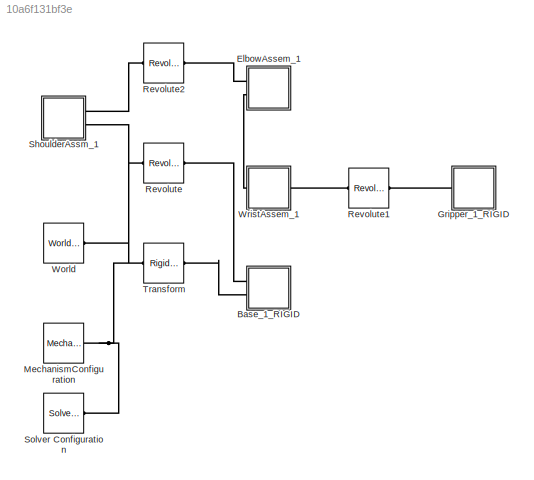
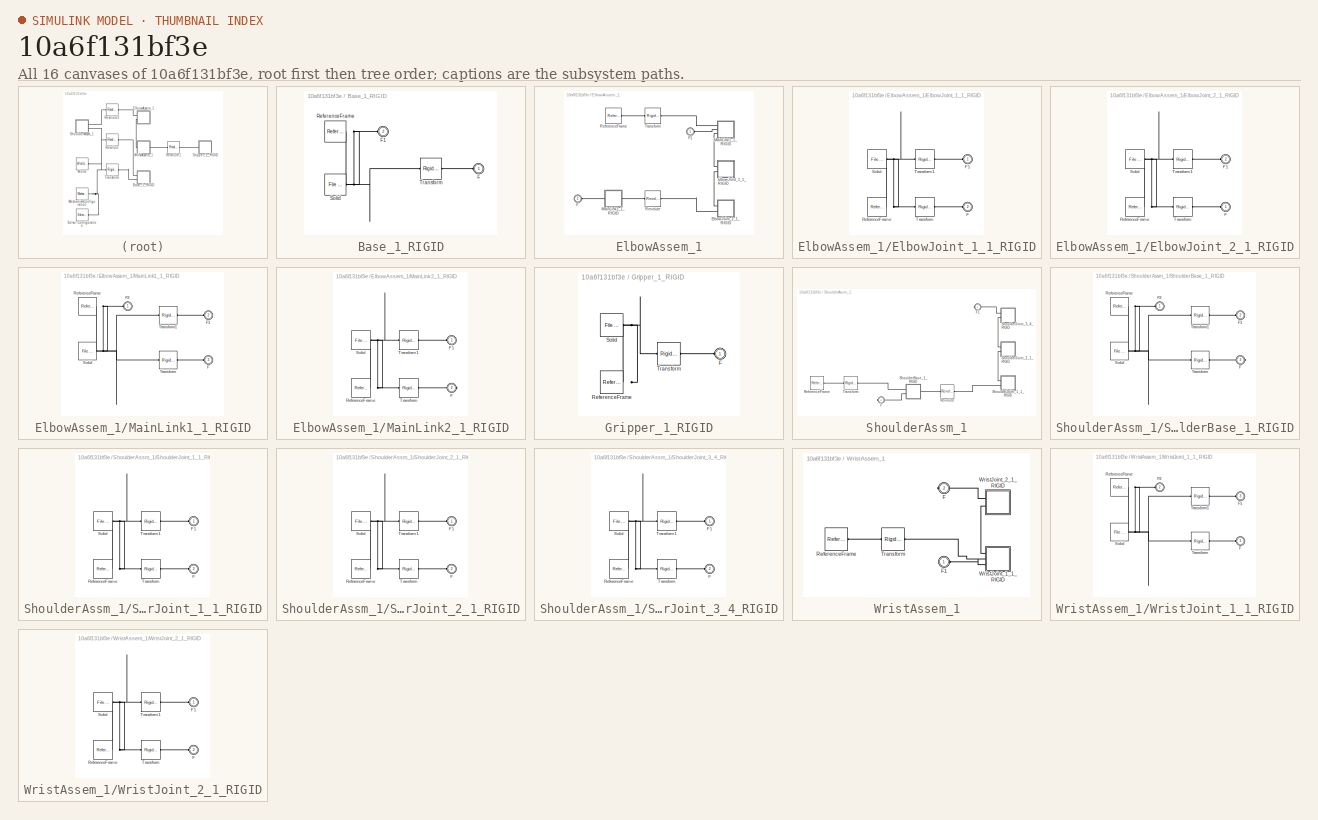
[diagram: thumbnail index - all 16 canvases of the model, root first then tree order]
MODEL slx_10a6f131bf3e
KIND model
CONFIG AbsTol = auto
CONFIG EnableMultiTasking = off
CONFIG FixedStep = auto
CONFIG MaxStep = auto
CONFIG MinStep = auto
CONFIG RelTol = 1e-3
CONFIG SampleTimeConstraint = Unconstrained
CONFIG SolverName = VariableStepAuto
CONFIG StartTime = 0.0
CONFIG StopTime = 10.0
WORKSPACE source: external: MATLAB File  (data not in archive)
BLOCK [SubSystem] Base_1_RIGID
  Ports = [0, 0, 0, 0, 0, 2]
  RequestExecContextInheritance = off
BLOCK [PMIOPort] Base_1_RIGID/F
  Side = Left
BLOCK [PMIOPort] Base_1_RIGID/F1
  Port = 2
  Side = Left
BLOCK [Reference] Base_1_RIGID/ReferenceFrame  REF=sm_lib/Frames and
Transforms/Reference
Frame
  Ports = [0, 0, 0, 0, 0, 0, 1]
  SourceBlock = sm_lib/Frames and\nTransforms/Reference\nFrame
  SourceProductBaseCode = MS
  SourceType = Reference\nFrame
BLOCK [Reference] Base_1_RIGID/Solid  REF=sm_lib/Body Elements/File Solid
  Ports = [0, 0, 0, 0, 0, 0, 1]
  SourceBlock = sm_lib/Body Elements/File Solid
  SourceProductBaseCode = MS
  SourceType = File Solid
BLOCK [Reference] Base_1_RIGID/Transform  REF=sm_lib/Frames and
Transforms/Rigid
Transform
  Ports = [0, 0, 0, 0, 0, 1, 1]
  SourceBlock = sm_lib/Frames and\nTransforms/Rigid\nTransform
  SourceProductBaseCode = MS
  SourceType = Rigid\nTransform
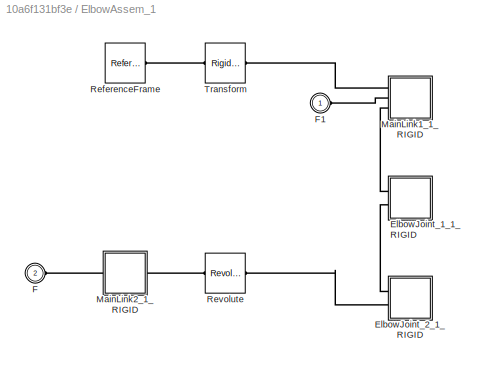
BLOCK [SubSystem] ElbowAssem_1
  Ports = [0, 0, 0, 0, 0, 2]
  RequestExecContextInheritance = off
BLOCK [SubSystem] ElbowAssem_1/ElbowJoint_1_1_RIGID
  Ports = [0, 0, 0, 0, 0, 2]
  RequestExecContextInheritance = off
BLOCK [PMIOPort] ElbowAssem_1/ElbowJoint_1_1_RIGID/F
  Port = 2
  Side = Left
BLOCK [PMIOPort] ElbowAssem_1/ElbowJoint_1_1_RIGID/F1
  Side = Left
BLOCK [Reference] ElbowAssem_1/ElbowJoint_1_1_RIGID/ReferenceFrame  REF=sm_lib/Frames and
Transforms/Reference
Frame
  Ports = [0, 0, 0, 0, 0, 0, 1]
  SourceBlock = sm_lib/Frames and\nTransforms/Reference\nFrame
  SourceProductBaseCode = MS
  SourceType = Reference\nFrame
BLOCK [Reference] ElbowAssem_1/ElbowJoint_1_1_RIGID/Solid  REF=sm_lib/Body Elements/File Solid
  Ports = [0, 0, 0, 0, 0, 0, 1]
  SourceBlock = sm_lib/Body Elements/File Solid
  SourceProductBaseCode = MS
  SourceType = File Solid
BLOCK [Reference] ElbowAssem_1/ElbowJoint_1_1_RIGID/Transform  REF=sm_lib/Frames and
Transforms/Rigid
Transform
  Ports = [0, 0, 0, 0, 0, 1, 1]
  SourceBlock = sm_lib/Frames and\nTransforms/Rigid\nTransform
  SourceProductBaseCode = MS
  SourceType = Rigid\nTransform
BLOCK [Reference] ElbowAssem_1/ElbowJoint_1_1_RIGID/Transform1  REF=sm_lib/Frames and
Transforms/Rigid
Transform
  Ports = [0, 0, 0, 0, 0, 1, 1]
  SourceBlock = sm_lib/Frames and\nTransforms/Rigid\nTransform
  SourceProductBaseCode = MS
  SourceType = Rigid\nTransform
BLOCK [SubSystem] ElbowAssem_1/ElbowJoint_2_1_RIGID
  Ports = [0, 0, 0, 0, 0, 2]
  RequestExecContextInheritance = off
BLOCK [PMIOPort] ElbowAssem_1/ElbowJoint_2_1_RIGID/F
  Side = Left
BLOCK [PMIOPort] ElbowAssem_1/ElbowJoint_2_1_RIGID/F1
  Port = 2
  Side = Left
BLOCK [Reference] ElbowAssem_1/ElbowJoint_2_1_RIGID/ReferenceFrame  REF=sm_lib/Frames and
Transforms/Reference
Frame
  Ports = [0, 0, 0, 0, 0, 0, 1]
  SourceBlock = sm_lib/Frames and\nTransforms/Reference\nFrame
  SourceProductBaseCode = MS
  SourceType = Reference\nFrame
BLOCK [Reference] ElbowAssem_1/ElbowJoint_2_1_RIGID/Solid  REF=sm_lib/Body Elements/File Solid
  Ports = [0, 0, 0, 0, 0, 0, 1]
  SourceBlock = sm_lib/Body Elements/File Solid
  SourceProductBaseCode = MS
  SourceType = File Solid
BLOCK [Reference] ElbowAssem_1/ElbowJoint_2_1_RIGID/Transform  REF=sm_lib/Frames and
Transforms/Rigid
Transform
  Ports = [0, 0, 0, 0, 0, 1, 1]
  SourceBlock = sm_lib/Frames and\nTransforms/Rigid\nTransform
  SourceProductBaseCode = MS
  SourceType = Rigid\nTransform
BLOCK [Reference] ElbowAssem_1/ElbowJoint_2_1_RIGID/Transform1  REF=sm_lib/Frames and
Transforms/Rigid
Transform
  Ports = [0, 0, 0, 0, 0, 1, 1]
  SourceBlock = sm_lib/Frames and\nTransforms/Rigid\nTransform
  SourceProductBaseCode = MS
  SourceType = Rigid\nTransform
BLOCK [PMIOPort] ElbowAssem_1/F
  Port = 2
  Side = Left
BLOCK [PMIOPort] ElbowAssem_1/F1
  Side = Left
BLOCK [SubSystem] ElbowAssem_1/MainLink1_1_RIGID
  Ports = [0, 0, 0, 0, 0, 3]
  RequestExecContextInheritance = off
BLOCK [PMIOPort] ElbowAssem_1/MainLink1_1_RIGID/F
  Port = 3
  Side = Left
BLOCK [PMIOPort] ElbowAssem_1/MainLink1_1_RIGID/F1
  Port = 2
  Side = Left
BLOCK [PMIOPort] ElbowAssem_1/MainLink1_1_RIGID/F2
  Side = Left
BLOCK [Reference] ElbowAssem_1/MainLink1_1_RIGID/ReferenceFrame  REF=sm_lib/Frames and
Transforms/Reference
Frame
  Ports = [0, 0, 0, 0, 0, 0, 1]
  SourceBlock = sm_lib/Frames and\nTransforms/Reference\nFrame
  SourceProductBaseCode = MS
  SourceType = Reference\nFrame
BLOCK [Reference] ElbowAssem_1/MainLink1_1_RIGID/Solid  REF=sm_lib/Body Elements/File Solid
  Ports = [0, 0, 0, 0, 0, 0, 1]
  SourceBlock = sm_lib/Body Elements/File Solid
  SourceProductBaseCode = MS
  SourceType = File Solid
BLOCK [Reference] ElbowAssem_1/MainLink1_1_RIGID/Transform  REF=sm_lib/Frames and
Transforms/Rigid
Transform
  Ports = [0, 0, 0, 0, 0, 1, 1]
  SourceBlock = sm_lib/Frames and\nTransforms/Rigid\nTransform
  SourceProductBaseCode = MS
  SourceType = Rigid\nTransform
BLOCK [Reference] ElbowAssem_1/MainLink1_1_RIGID/Transform1  REF=sm_lib/Frames and
Transforms/Rigid
Transform
  Ports = [0, 0, 0, 0, 0, 1, 1]
  SourceBlock = sm_lib/Frames and\nTransforms/Rigid\nTransform
  SourceProductBaseCode = MS
  SourceType = Rigid\nTransform
BLOCK [SubSystem] ElbowAssem_1/MainLink2_1_RIGID
  Ports = [0, 0, 0, 0, 0, 1, 1]
  RequestExecContextInheritance = off
BLOCK [PMIOPort] ElbowAssem_1/MainLink2_1_RIGID/F
  Port = 2
  Side = Right
BLOCK [PMIOPort] ElbowAssem_1/MainLink2_1_RIGID/F1
  Side = Left
BLOCK [Reference] ElbowAssem_1/MainLink2_1_RIGID/ReferenceFrame  REF=sm_lib/Frames and
Transforms/Reference
Frame
  Ports = [0, 0, 0, 0, 0, 0, 1]
  SourceBlock = sm_lib/Frames and\nTransforms/Reference\nFrame
  SourceProductBaseCode = MS
  SourceType = Reference\nFrame
BLOCK [Reference] ElbowAssem_1/MainLink2_1_RIGID/Solid  REF=sm_lib/Body Elements/File Solid
  Ports = [0, 0, 0, 0, 0, 0, 1]
  SourceBlock = sm_lib/Body Elements/File Solid
  SourceProductBaseCode = MS
  SourceType = File Solid
BLOCK [Reference] ElbowAssem_1/MainLink2_1_RIGID/Transform  REF=sm_lib/Frames and
Transforms/Rigid
Transform
  Ports = [0, 0, 0, 0, 0, 1, 1]
  SourceBlock = sm_lib/Frames and\nTransforms/Rigid\nTransform
  SourceProductBaseCode = MS
  SourceType = Rigid\nTransform
BLOCK [Reference] ElbowAssem_1/MainLink2_1_RIGID/Transform1  REF=sm_lib/Frames and
Transforms/Rigid
Transform
  Ports = [0, 0, 0, 0, 0, 1, 1]
  SourceBlock = sm_lib/Frames and\nTransforms/Rigid\nTransform
  SourceProductBaseCode = MS
  SourceType = Rigid\nTransform
BLOCK [Reference] ElbowAssem_1/ReferenceFrame  REF=sm_lib/Frames and
Transforms/Reference
Frame
  Ports = [0, 0, 0, 0, 0, 0, 1]
  SourceBlock = sm_lib/Frames and\nTransforms/Reference\nFrame
  SourceProductBaseCode = MS
  SourceType = Reference\nFrame
BLOCK [Reference] ElbowAssem_1/Revolute  REF=sm_lib/Joints/Revolute Joint
  Ports = [0, 0, 0, 0, 0, 1, 1]
  SourceBlock = sm_lib/Joints/Revolute Joint
  SourceProductBaseCode = MS
  SourceType = Revolute Joint
BLOCK [Reference] ElbowAssem_1/Transform  REF=sm_lib/Frames and
Transforms/Rigid
Transform
  Ports = [0, 0, 0, 0, 0, 1, 1]
  SourceBlock = sm_lib/Frames and\nTransforms/Rigid\nTransform
  SourceProductBaseCode = MS
  SourceType = Rigid\nTransform
BLOCK [SubSystem] Gripper_1_RIGID
  Ports = [0, 0, 0, 0, 0, 1]
  RequestExecContextInheritance = off
BLOCK [PMIOPort] Gripper_1_RIGID/F
  Side = Left
BLOCK [Reference] Gripper_1_RIGID/ReferenceFrame  REF=sm_lib/Frames and
Transforms/Reference
Frame
  Ports = [0, 0, 0, 0, 0, 0, 1]
  SourceBlock = sm_lib/Frames and\nTransforms/Reference\nFrame
  SourceProductBaseCode = MS
  SourceType = Reference\nFrame
BLOCK [Reference] Gripper_1_RIGID/Solid  REF=sm_lib/Body Elements/File Solid
  Ports = [0, 0, 0, 0, 0, 0, 1]
  SourceBlock = sm_lib/Body Elements/File Solid
  SourceProductBaseCode = MS
  SourceType = File Solid
BLOCK [Reference] Gripper_1_RIGID/Transform  REF=sm_lib/Frames and
Transforms/Rigid
Transform
  Ports = [0, 0, 0, 0, 0, 1, 1]
  SourceBlock = sm_lib/Frames and\nTransforms/Rigid\nTransform
  SourceProductBaseCode = MS
  SourceType = Rigid\nTransform
BLOCK [Reference] MechanismConfiguration  REF=sm_lib/Utilities/Mechanism
Configuration
  Ports = [0, 0, 0, 0, 0, 0, 1]
  SourceBlock = sm_lib/Utilities/Mechanism\nConfiguration
  SourceProductBaseCode = MS
  SourceType = Mechanism\nConfiguration
BLOCK [Reference] Revolute  REF=sm_lib/Joints/Revolute Joint
  Ports = [0, 0, 0, 0, 0, 1, 1]
  SourceBlock = sm_lib/Joints/Revolute Joint
  SourceProductBaseCode = MS
  SourceType = Revolute Joint
BLOCK [Reference] Revolute1  REF=sm_lib/Joints/Revolute Joint
  Ports = [0, 0, 0, 0, 0, 1, 1]
  SourceBlock = sm_lib/Joints/Revolute Joint
  SourceProductBaseCode = MS
  SourceType = Revolute Joint
BLOCK [Reference] Revolute2  REF=sm_lib/Joints/Revolute Joint
  Ports = [0, 0, 0, 0, 0, 1, 1]
  SourceBlock = sm_lib/Joints/Revolute Joint
  SourceProductBaseCode = MS
  SourceType = Revolute Joint
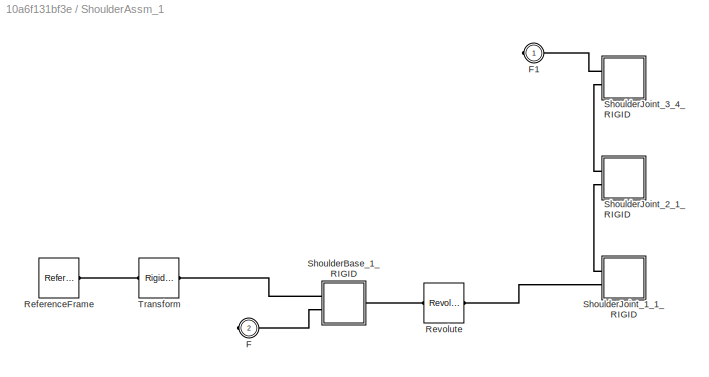
BLOCK [SubSystem] ShoulderAssm_1
  Ports = [0, 0, 0, 0, 0, 0, 2]
  RequestExecContextInheritance = off
BLOCK [PMIOPort] ShoulderAssm_1/F
  Port = 2
  Side = Right
BLOCK [PMIOPort] ShoulderAssm_1/F1
  Side = Right
BLOCK [Reference] ShoulderAssm_1/ReferenceFrame  REF=sm_lib/Frames and
Transforms/Reference
Frame
  Ports = [0, 0, 0, 0, 0, 0, 1]
  SourceBlock = sm_lib/Frames and\nTransforms/Reference\nFrame
  SourceProductBaseCode = MS
  SourceType = Reference\nFrame
BLOCK [Reference] ShoulderAssm_1/Revolute  REF=sm_lib/Joints/Revolute Joint
  Ports = [0, 0, 0, 0, 0, 1, 1]
  SourceBlock = sm_lib/Joints/Revolute Joint
  SourceProductBaseCode = MS
  SourceType = Revolute Joint
BLOCK [SubSystem] ShoulderAssm_1/ShoulderBase_1_RIGID
  Ports = [0, 0, 0, 0, 0, 2, 1]
  RequestExecContextInheritance = off
BLOCK [PMIOPort] ShoulderAssm_1/ShoulderBase_1_RIGID/F
  Port = 3
  Side = Right
BLOCK [PMIOPort] ShoulderAssm_1/ShoulderBase_1_RIGID/F1
  Port = 2
  Side = Left
BLOCK [PMIOPort] ShoulderAssm_1/ShoulderBase_1_RIGID/F2
  Side = Left
BLOCK [Reference] ShoulderAssm_1/ShoulderBase_1_RIGID/ReferenceFrame  REF=sm_lib/Frames and
Transforms/Reference
Frame
  Ports = [0, 0, 0, 0, 0, 0, 1]
  SourceBlock = sm_lib/Frames and\nTransforms/Reference\nFrame
  SourceProductBaseCode = MS
  SourceType = Reference\nFrame
BLOCK [Reference] ShoulderAssm_1/ShoulderBase_1_RIGID/Solid  REF=sm_lib/Body Elements/File Solid
  Ports = [0, 0, 0, 0, 0, 0, 1]
  SourceBlock = sm_lib/Body Elements/File Solid
  SourceProductBaseCode = MS
  SourceType = File Solid
BLOCK [Reference] ShoulderAssm_1/ShoulderBase_1_RIGID/Transform  REF=sm_lib/Frames and
Transforms/Rigid
Transform
  Ports = [0, 0, 0, 0, 0, 1, 1]
  SourceBlock = sm_lib/Frames and\nTransforms/Rigid\nTransform
  SourceProductBaseCode = MS
  SourceType = Rigid\nTransform
BLOCK [Reference] ShoulderAssm_1/ShoulderBase_1_RIGID/Transform1  REF=sm_lib/Frames and
Transforms/Rigid
Transform
  Ports = [0, 0, 0, 0, 0, 1, 1]
  SourceBlock = sm_lib/Frames and\nTransforms/Rigid\nTransform
  SourceProductBaseCode = MS
  SourceType = Rigid\nTransform
BLOCK [SubSystem] ShoulderAssm_1/ShoulderJoint_1_1_RIGID
  Ports = [0, 0, 0, 0, 0, 2]
  RequestExecContextInheritance = off
BLOCK [PMIOPort] ShoulderAssm_1/ShoulderJoint_1_1_RIGID/F
  Port = 2
  Side = Left
BLOCK [PMIOPort] ShoulderAssm_1/ShoulderJoint_1_1_RIGID/F1
  Side = Left
BLOCK [Reference] ShoulderAssm_1/ShoulderJoint_1_1_RIGID/ReferenceFrame  REF=sm_lib/Frames and
Transforms/Reference
Frame
  Ports = [0, 0, 0, 0, 0, 0, 1]
  SourceBlock = sm_lib/Frames and\nTransforms/Reference\nFrame
  SourceProductBaseCode = MS
  SourceType = Reference\nFrame
BLOCK [Reference] ShoulderAssm_1/ShoulderJoint_1_1_RIGID/Solid  REF=sm_lib/Body Elements/File Solid
  Ports = [0, 0, 0, 0, 0, 0, 1]
  SourceBlock = sm_lib/Body Elements/File Solid
  SourceProductBaseCode = MS
  SourceType = File Solid
BLOCK [Reference] ShoulderAssm_1/ShoulderJoint_1_1_RIGID/Transform  REF=sm_lib/Frames and
Transforms/Rigid
Transform
  Ports = [0, 0, 0, 0, 0, 1, 1]
  SourceBlock = sm_lib/Frames and\nTransforms/Rigid\nTransform
  SourceProductBaseCode = MS
  SourceType = Rigid\nTransform
BLOCK [Reference] ShoulderAssm_1/ShoulderJoint_1_1_RIGID/Transform1  REF=sm_lib/Frames and
Transforms/Rigid
Transform
  Ports = [0, 0, 0, 0, 0, 1, 1]
  SourceBlock = sm_lib/Frames and\nTransforms/Rigid\nTransform
  SourceProductBaseCode = MS
  SourceType = Rigid\nTransform
BLOCK [SubSystem] ShoulderAssm_1/ShoulderJoint_2_1_RIGID
  Ports = [0, 0, 0, 0, 0, 2]
  RequestExecContextInheritance = off
BLOCK [PMIOPort] ShoulderAssm_1/ShoulderJoint_2_1_RIGID/F
  Port = 2
  Side = Left
BLOCK [PMIOPort] ShoulderAssm_1/ShoulderJoint_2_1_RIGID/F1
  Side = Left
BLOCK [Reference] ShoulderAssm_1/ShoulderJoint_2_1_RIGID/ReferenceFrame  REF=sm_lib/Frames and
Transforms/Reference
Frame
  Ports = [0, 0, 0, 0, 0, 0, 1]
  SourceBlock = sm_lib/Frames and\nTransforms/Reference\nFrame
  SourceProductBaseCode = MS
  SourceType = Reference\nFrame
BLOCK [Reference] ShoulderAssm_1/ShoulderJoint_2_1_RIGID/Solid  REF=sm_lib/Body Elements/File Solid
  Ports = [0, 0, 0, 0, 0, 0, 1]
  SourceBlock = sm_lib/Body Elements/File Solid
  SourceProductBaseCode = MS
  SourceType = File Solid
BLOCK [Reference] ShoulderAssm_1/ShoulderJoint_2_1_RIGID/Transform  REF=sm_lib/Frames and
Transforms/Rigid
Transform
  Ports = [0, 0, 0, 0, 0, 1, 1]
  SourceBlock = sm_lib/Frames and\nTransforms/Rigid\nTransform
  SourceProductBaseCode = MS
  SourceType = Rigid\nTransform
BLOCK [Reference] ShoulderAssm_1/ShoulderJoint_2_1_RIGID/Transform1  REF=sm_lib/Frames and
Transforms/Rigid
Transform
  Ports = [0, 0, 0, 0, 0, 1, 1]
  SourceBlock = sm_lib/Frames and\nTransforms/Rigid\nTransform
  SourceProductBaseCode = MS
  SourceType = Rigid\nTransform
BLOCK [SubSystem] ShoulderAssm_1/ShoulderJoint_3_4_RIGID
  Ports = [0, 0, 0, 0, 0, 2]
  RequestExecContextInheritance = off
BLOCK [PMIOPort] ShoulderAssm_1/ShoulderJoint_3_4_RIGID/F
  Port = 2
  Side = Left
BLOCK [PMIOPort] ShoulderAssm_1/ShoulderJoint_3_4_RIGID/F1
  Side = Left
BLOCK [Reference] ShoulderAssm_1/ShoulderJoint_3_4_RIGID/ReferenceFrame  REF=sm_lib/Frames and
Transforms/Reference
Frame
  Ports = [0, 0, 0, 0, 0, 0, 1]
  SourceBlock = sm_lib/Frames and\nTransforms/Reference\nFrame
  SourceProductBaseCode = MS
  SourceType = Reference\nFrame
BLOCK [Reference] ShoulderAssm_1/ShoulderJoint_3_4_RIGID/Solid  REF=sm_lib/Body Elements/File Solid
  Ports = [0, 0, 0, 0, 0, 0, 1]
  SourceBlock = sm_lib/Body Elements/File Solid
  SourceProductBaseCode = MS
  SourceType = File Solid
BLOCK [Reference] ShoulderAssm_1/ShoulderJoint_3_4_RIGID/Transform  REF=sm_lib/Frames and
Transforms/Rigid
Transform
  Ports = [0, 0, 0, 0, 0, 1, 1]
  SourceBlock = sm_lib/Frames and\nTransforms/Rigid\nTransform
  SourceProductBaseCode = MS
  SourceType = Rigid\nTransform
BLOCK [Reference] ShoulderAssm_1/ShoulderJoint_3_4_RIGID/Transform1  REF=sm_lib/Frames and
Transforms/Rigid
Transform
  Ports = [0, 0, 0, 0, 0, 1, 1]
  SourceBlock = sm_lib/Frames and\nTransforms/Rigid\nTransform
  SourceProductBaseCode = MS
  SourceType = Rigid\nTransform
BLOCK [Reference] ShoulderAssm_1/Transform  REF=sm_lib/Frames and
Transforms/Rigid
Transform
  Ports = [0, 0, 0, 0, 0, 1, 1]
  SourceBlock = sm_lib/Frames and\nTransforms/Rigid\nTransform
  SourceProductBaseCode = MS
  SourceType = Rigid\nTransform
BLOCK [Reference] Solver Configuration  REF=nesl_utility/Solver
Configuration
  Ports = [0, 0, 0, 0, 0, 0, 1]
  SourceBlock = nesl_utility/Solver\nConfiguration
  SourceProductBaseCode = SS,PW,VE
  SourceType = Solver\nConfiguration
BLOCK [Reference] Transform  REF=sm_lib/Frames and
Transforms/Rigid
Transform
  Ports = [0, 0, 0, 0, 0, 1, 1]
  SourceBlock = sm_lib/Frames and\nTransforms/Rigid\nTransform
  SourceProductBaseCode = MS
  SourceType = Rigid\nTransform
BLOCK [Reference] World  REF=sm_lib/Frames and
Transforms/World Frame
  Ports = [0, 0, 0, 0, 0, 0, 1]
  SourceBlock = sm_lib/Frames and\nTransforms/World Frame
  SourceProductBaseCode = MS
  SourceType = World Frame
BLOCK [SubSystem] WristAssem_1
  Ports = [0, 0, 0, 0, 0, 1, 1]
  RequestExecContextInheritance = off
BLOCK [PMIOPort] WristAssem_1/F
  Port = 2
  Side = Right
BLOCK [PMIOPort] WristAssem_1/F1
  Side = Left
BLOCK [Reference] WristAssem_1/ReferenceFrame  REF=sm_lib/Frames and
Transforms/Reference
Frame
  Ports = [0, 0, 0, 0, 0, 0, 1]
  SourceBlock = sm_lib/Frames and\nTransforms/Reference\nFrame
  SourceProductBaseCode = MS
  SourceType = Reference\nFrame
BLOCK [Reference] WristAssem_1/Transform  REF=sm_lib/Frames and
Transforms/Rigid
Transform
  Ports = [0, 0, 0, 0, 0, 1, 1]
  SourceBlock = sm_lib/Frames and\nTransforms/Rigid\nTransform
  SourceProductBaseCode = MS
  SourceType = Rigid\nTransform
BLOCK [SubSystem] WristAssem_1/WristJoint_1_1_RIGID
  Ports = [0, 0, 0, 0, 0, 3]
  RequestExecContextInheritance = off
BLOCK [PMIOPort] WristAssem_1/WristJoint_1_1_RIGID/F
  Side = Left
BLOCK [PMIOPort] WristAssem_1/WristJoint_1_1_RIGID/F1
  Port = 3
  Side = Left
BLOCK [PMIOPort] WristAssem_1/WristJoint_1_1_RIGID/F2
  Port = 2
  Side = Left
BLOCK [Reference] WristAssem_1/WristJoint_1_1_RIGID/ReferenceFrame  REF=sm_lib/Frames and
Transforms/Reference
Frame
  Ports = [0, 0, 0, 0, 0, 0, 1]
  SourceBlock = sm_lib/Frames and\nTransforms/Reference\nFrame
  SourceProductBaseCode = MS
  SourceType = Reference\nFrame
BLOCK [Reference] WristAssem_1/WristJoint_1_1_RIGID/Solid  REF=sm_lib/Body Elements/File Solid
  Ports = [0, 0, 0, 0, 0, 0, 1]
  SourceBlock = sm_lib/Body Elements/File Solid
  SourceProductBaseCode = MS
  SourceType = File Solid
BLOCK [Reference] WristAssem_1/WristJoint_1_1_RIGID/Transform  REF=sm_lib/Frames and
Transforms/Rigid
Transform
  Ports = [0, 0, 0, 0, 0, 1, 1]
  SourceBlock = sm_lib/Frames and\nTransforms/Rigid\nTransform
  SourceProductBaseCode = MS
  SourceType = Rigid\nTransform
BLOCK [Reference] WristAssem_1/WristJoint_1_1_RIGID/Transform1  REF=sm_lib/Frames and
Transforms/Rigid
Transform
  Ports = [0, 0, 0, 0, 0, 1, 1]
  SourceBlock = sm_lib/Frames and\nTransforms/Rigid\nTransform
  SourceProductBaseCode = MS
  SourceType = Rigid\nTransform
BLOCK [SubSystem] WristAssem_1/WristJoint_2_1_RIGID
  Ports = [0, 0, 0, 0, 0, 2]
  RequestExecContextInheritance = off
BLOCK [PMIOPort] WristAssem_1/WristJoint_2_1_RIGID/F
  Port = 2
  Side = Left
BLOCK [PMIOPort] WristAssem_1/WristJoint_2_1_RIGID/F1
  Side = Left
BLOCK [Reference] WristAssem_1/WristJoint_2_1_RIGID/ReferenceFrame  REF=sm_lib/Frames and
Transforms/Reference
Frame
  Ports = [0, 0, 0, 0, 0, 0, 1]
  SourceBlock = sm_lib/Frames and\nTransforms/Reference\nFrame
  SourceProductBaseCode = MS
  SourceType = Reference\nFrame
BLOCK [Reference] WristAssem_1/WristJoint_2_1_RIGID/Solid  REF=sm_lib/Body Elements/File Solid
  Ports = [0, 0, 0, 0, 0, 0, 1]
  SourceBlock = sm_lib/Body Elements/File Solid
  SourceProductBaseCode = MS
  SourceType = File Solid
BLOCK [Reference] WristAssem_1/WristJoint_2_1_RIGID/Transform  REF=sm_lib/Frames and
Transforms/Rigid
Transform
  Ports = [0, 0, 0, 0, 0, 1, 1]
  SourceBlock = sm_lib/Frames and\nTransforms/Rigid\nTransform
  SourceProductBaseCode = MS
  SourceType = Rigid\nTransform
BLOCK [Reference] WristAssem_1/WristJoint_2_1_RIGID/Transform1  REF=sm_lib/Frames and
Transforms/Rigid
Transform
  Ports = [0, 0, 0, 0, 0, 1, 1]
  SourceBlock = sm_lib/Frames and\nTransforms/Rigid\nTransform
  SourceProductBaseCode = MS
  SourceType = Rigid\nTransform
PNET net1: Base_1_RIGID/F1:RConn1 -- Base_1_RIGID/ReferenceFrame:RConn1 -- Base_1_RIGID/Solid:RConn1 -- Base_1_RIGID/Transform:LConn1
PLINE Base_1_RIGID/F:RConn1 -- Base_1_RIGID/Transform:RConn1
PLINE Base_1_RIGID:LConn1 -- Revolute:RConn1
PLINE Base_1_RIGID:LConn2 -- Transform:RConn1
PLINE ElbowAssem_1/ElbowJoint_1_1_RIGID/F1:RConn1 -- ElbowAssem_1/ElbowJoint_1_1_RIGID/Transform1:RConn1
PLINE ElbowAssem_1/ElbowJoint_1_1_RIGID/F:RConn1 -- ElbowAssem_1/ElbowJoint_1_1_RIGID/Transform:RConn1
PNET net2: ElbowAssem_1/ElbowJoint_1_1_RIGID/ReferenceFrame:RConn1 -- ElbowAssem_1/ElbowJoint_1_1_RIGID/Solid:RConn1 -- ElbowAssem_1/ElbowJoint_1_1_RIGID/Transform1:LConn1 -- ElbowAssem_1/ElbowJoint_1_1_RIGID/Transform:LConn1
PLINE ElbowAssem_1/ElbowJoint_1_1_RIGID:LConn1 -- ElbowAssem_1/MainLink1_1_RIGID:LConn3
PLINE ElbowAssem_1/ElbowJoint_1_1_RIGID:LConn2 -- ElbowAssem_1/ElbowJoint_2_1_RIGID:LConn1
PLINE ElbowAssem_1/ElbowJoint_2_1_RIGID/F1:RConn1 -- ElbowAssem_1/ElbowJoint_2_1_RIGID/Transform1:RConn1
PLINE ElbowAssem_1/ElbowJoint_2_1_RIGID/F:RConn1 -- ElbowAssem_1/ElbowJoint_2_1_RIGID/Transform:RConn1
PNET net3: ElbowAssem_1/ElbowJoint_2_1_RIGID/ReferenceFrame:RConn1 -- ElbowAssem_1/ElbowJoint_2_1_RIGID/Solid:RConn1 -- ElbowAssem_1/ElbowJoint_2_1_RIGID/Transform1:LConn1 -- ElbowAssem_1/ElbowJoint_2_1_RIGID/Transform:LConn1
PLINE ElbowAssem_1/ElbowJoint_2_1_RIGID:LConn2 -- ElbowAssem_1/Revolute:RConn1
PLINE ElbowAssem_1/F1:RConn1 -- ElbowAssem_1/MainLink1_1_RIGID:LConn2
PLINE ElbowAssem_1/F:RConn1 -- ElbowAssem_1/MainLink2_1_RIGID:LConn1
PLINE ElbowAssem_1/MainLink1_1_RIGID/F1:RConn1 -- ElbowAssem_1/MainLink1_1_RIGID/Transform1:RConn1
PNET net4: ElbowAssem_1/MainLink1_1_RIGID/F2:RConn1 -- ElbowAssem_1/MainLink1_1_RIGID/ReferenceFrame:RConn1 -- ElbowAssem_1/MainLink1_1_RIGID/Solid:RConn1 -- ElbowAssem_1/MainLink1_1_RIGID/Transform1:LConn1 -- ElbowAssem_1/MainLink1_1_RIGID/Transform:LConn1
PLINE ElbowAssem_1/MainLink1_1_RIGID/F:RConn1 -- ElbowAssem_1/MainLink1_1_RIGID/Transform:RConn1
PLINE ElbowAssem_1/MainLink1_1_RIGID:LConn1 -- ElbowAssem_1/Transform:RConn1
PLINE ElbowAssem_1/MainLink2_1_RIGID/F1:RConn1 -- ElbowAssem_1/MainLink2_1_RIGID/Transform1:RConn1
PLINE ElbowAssem_1/MainLink2_1_RIGID/F:RConn1 -- ElbowAssem_1/MainLink2_1_RIGID/Transform:RConn1
PNET net5: ElbowAssem_1/MainLink2_1_RIGID/ReferenceFrame:RConn1 -- ElbowAssem_1/MainLink2_1_RIGID/Solid:RConn1 -- ElbowAssem_1/MainLink2_1_RIGID/Transform1:LConn1 -- ElbowAssem_1/MainLink2_1_RIGID/Transform:LConn1
PLINE ElbowAssem_1/MainLink2_1_RIGID:RConn1 -- ElbowAssem_1/Revolute:LConn1
PLINE ElbowAssem_1/ReferenceFrame:RConn1 -- ElbowAssem_1/Transform:LConn1
PLINE ElbowAssem_1:LConn1 -- Revolute2:RConn1
PLINE ElbowAssem_1:LConn2 -- WristAssem_1:LConn1
PLINE Gripper_1_RIGID/F:RConn1 -- Gripper_1_RIGID/Transform:RConn1
PNET net6: Gripper_1_RIGID/ReferenceFrame:RConn1 -- Gripper_1_RIGID/Solid:RConn1 -- Gripper_1_RIGID/Transform:LConn1
PLINE Gripper_1_RIGID:LConn1 -- Revolute1:RConn1
PNET net7: MechanismConfiguration:RConn1 -- Solver Configuration:RConn1 -- Transform:LConn1 -- World:RConn1
PLINE Revolute1:LConn1 -- WristAssem_1:RConn1
PLINE Revolute2:LConn1 -- ShoulderAssm_1:RConn1
PLINE Revolute:LConn1 -- ShoulderAssm_1:RConn2
PLINE ShoulderAssm_1/F1:RConn1 -- ShoulderAssm_1/ShoulderJoint_3_4_RIGID:LConn1
PLINE ShoulderAssm_1/F:RConn1 -- ShoulderAssm_1/ShoulderBase_1_RIGID:LConn2
PLINE ShoulderAssm_1/ReferenceFrame:RConn1 -- ShoulderAssm_1/Transform:LConn1
PLINE ShoulderAssm_1/Revolute:LConn1 -- ShoulderAssm_1/ShoulderBase_1_RIGID:RConn1
PLINE ShoulderAssm_1/Revolute:RConn1 -- ShoulderAssm_1/ShoulderJoint_1_1_RIGID:LConn2
PLINE ShoulderAssm_1/ShoulderBase_1_RIGID/F1:RConn1 -- ShoulderAssm_1/ShoulderBase_1_RIGID/Transform1:RConn1
PNET net8: ShoulderAssm_1/ShoulderBase_1_RIGID/F2:RConn1 -- ShoulderAssm_1/ShoulderBase_1_RIGID/ReferenceFrame:RConn1 -- ShoulderAssm_1/ShoulderBase_1_RIGID/Solid:RConn1 -- ShoulderAssm_1/ShoulderBase_1_RIGID/Transform1:LConn1 -- ShoulderAssm_1/ShoulderBase_1_RIGID/Transform:LConn1
PLINE ShoulderAssm_1/ShoulderBase_1_RIGID/F:RConn1 -- ShoulderAssm_1/ShoulderBase_1_RIGID/Transform:RConn1
PLINE ShoulderAssm_1/ShoulderBase_1_RIGID:LConn1 -- ShoulderAssm_1/Transform:RConn1
PLINE ShoulderAssm_1/ShoulderJoint_1_1_RIGID/F1:RConn1 -- ShoulderAssm_1/ShoulderJoint_1_1_RIGID/Transform1:RConn1
PLINE ShoulderAssm_1/ShoulderJoint_1_1_RIGID/F:RConn1 -- ShoulderAssm_1/ShoulderJoint_1_1_RIGID/Transform:RConn1
PNET net9: ShoulderAssm_1/ShoulderJoint_1_1_RIGID/ReferenceFrame:RConn1 -- ShoulderAssm_1/ShoulderJoint_1_1_RIGID/Solid:RConn1 -- ShoulderAssm_1/ShoulderJoint_1_1_RIGID/Transform1:LConn1 -- ShoulderAssm_1/ShoulderJoint_1_1_RIGID/Transform:LConn1
PLINE ShoulderAssm_1/ShoulderJoint_1_1_RIGID:LConn1 -- ShoulderAssm_1/ShoulderJoint_2_1_RIGID:LConn2
PLINE ShoulderAssm_1/ShoulderJoint_2_1_RIGID/F1:RConn1 -- ShoulderAssm_1/ShoulderJoint_2_1_RIGID/Transform1:RConn1
PLINE ShoulderAssm_1/ShoulderJoint_2_1_RIGID/F:RConn1 -- ShoulderAssm_1/ShoulderJoint_2_1_RIGID/Transform:RConn1
PNET net10: ShoulderAssm_1/ShoulderJoint_2_1_RIGID/ReferenceFrame:RConn1 -- ShoulderAssm_1/ShoulderJoint_2_1_RIGID/Solid:RConn1 -- ShoulderAssm_1/ShoulderJoint_2_1_RIGID/Transform1:LConn1 -- ShoulderAssm_1/ShoulderJoint_2_1_RIGID/Transform:LConn1
PLINE ShoulderAssm_1/ShoulderJoint_2_1_RIGID:LConn1 -- ShoulderAssm_1/ShoulderJoint_3_4_RIGID:LConn2
PLINE ShoulderAssm_1/ShoulderJoint_3_4_RIGID/F1:RConn1 -- ShoulderAssm_1/ShoulderJoint_3_4_RIGID/Transform1:RConn1
PLINE ShoulderAssm_1/ShoulderJoint_3_4_RIGID/F:RConn1 -- ShoulderAssm_1/ShoulderJoint_3_4_RIGID/Transform:RConn1
PNET net11: ShoulderAssm_1/ShoulderJoint_3_4_RIGID/ReferenceFrame:RConn1 -- ShoulderAssm_1/ShoulderJoint_3_4_RIGID/Solid:RConn1 -- ShoulderAssm_1/ShoulderJoint_3_4_RIGID/Transform1:LConn1 -- ShoulderAssm_1/ShoulderJoint_3_4_RIGID/Transform:LConn1
PLINE WristAssem_1/F1:RConn1 -- WristAssem_1/WristJoint_1_1_RIGID:LConn3
PLINE WristAssem_1/F:RConn1 -- WristAssem_1/WristJoint_2_1_RIGID:LConn1
PLINE WristAssem_1/ReferenceFrame:RConn1 -- WristAssem_1/Transform:LConn1
PLINE WristAssem_1/Transform:RConn1 -- WristAssem_1/WristJoint_1_1_RIGID:LConn2
PLINE WristAssem_1/WristJoint_1_1_RIGID/F1:RConn1 -- WristAssem_1/WristJoint_1_1_RIGID/Transform1:RConn1
PNET net12: WristAssem_1/WristJoint_1_1_RIGID/F2:RConn1 -- WristAssem_1/WristJoint_1_1_RIGID/ReferenceFrame:RConn1 -- WristAssem_1/WristJoint_1_1_RIGID/Solid:RConn1 -- WristAssem_1/WristJoint_1_1_RIGID/Transform1:LConn1 -- WristAssem_1/WristJoint_1_1_RIGID/Transform:LConn1
PLINE WristAssem_1/WristJoint_1_1_RIGID/F:RConn1 -- WristAssem_1/WristJoint_1_1_RIGID/Transform:RConn1
PLINE WristAssem_1/WristJoint_1_1_RIGID:LConn1 -- WristAssem_1/WristJoint_2_1_RIGID:LConn2
PLINE WristAssem_1/WristJoint_2_1_RIGID/F1:RConn1 -- WristAssem_1/WristJoint_2_1_RIGID/Transform1:RConn1
PLINE WristAssem_1/WristJoint_2_1_RIGID/F:RConn1 -- WristAssem_1/WristJoint_2_1_RIGID/Transform:RConn1
PNET net13: WristAssem_1/WristJoint_2_1_RIGID/ReferenceFrame:RConn1 -- WristAssem_1/WristJoint_2_1_RIGID/Solid:RConn1 -- WristAssem_1/WristJoint_2_1_RIGID/Transform1:LConn1 -- WristAssem_1/WristJoint_2_1_RIGID/Transform:LConn1
note: PNET lines group multi-terminal physical nets as a canonical sorted terminal list (undirected conserving connections); 2-terminal nets keep the pairwise PLINE form
